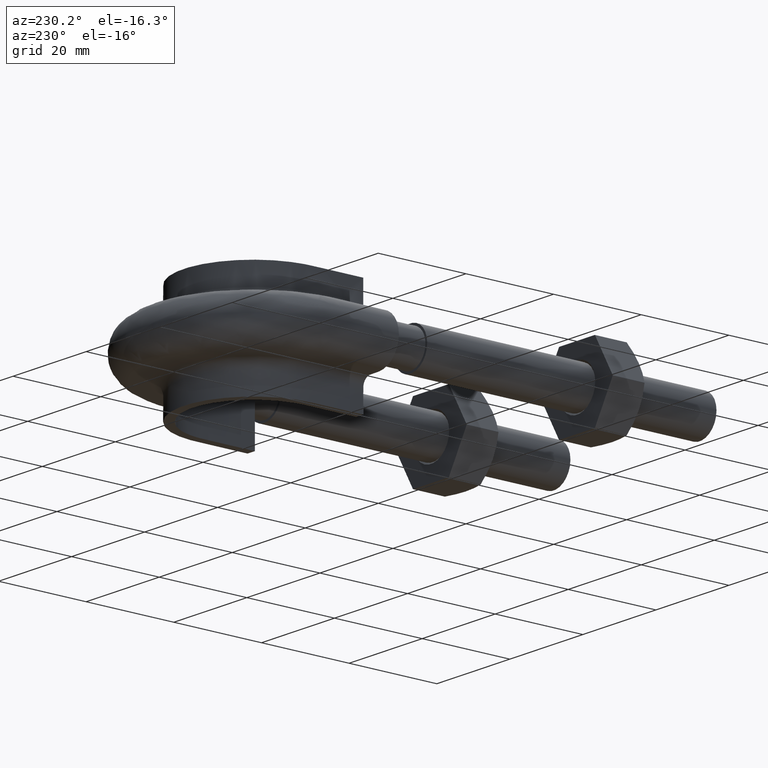
[diagram: clean part render]
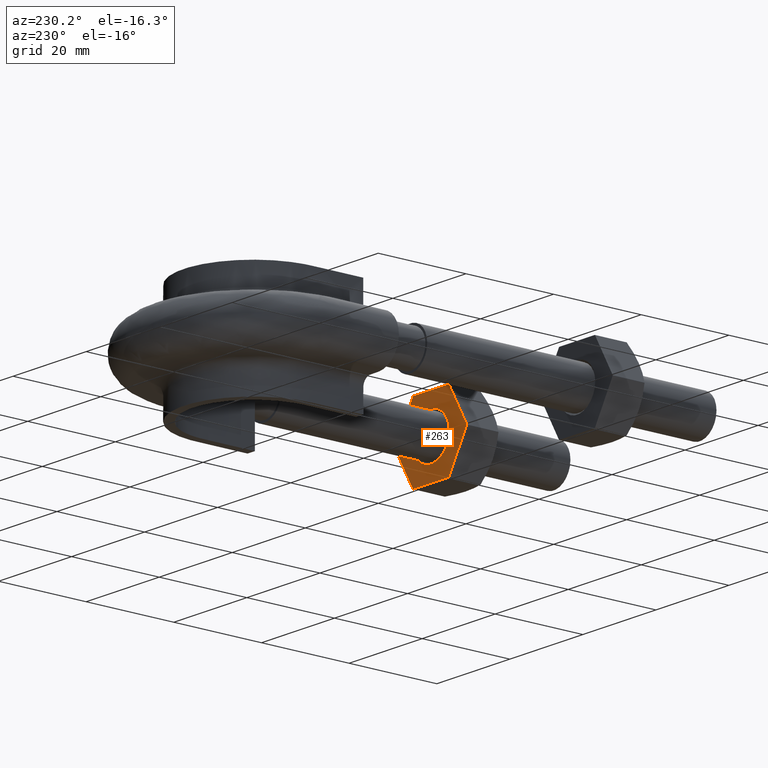
[diagram: same view with one face highlighted and labeled with its STEP entity id]
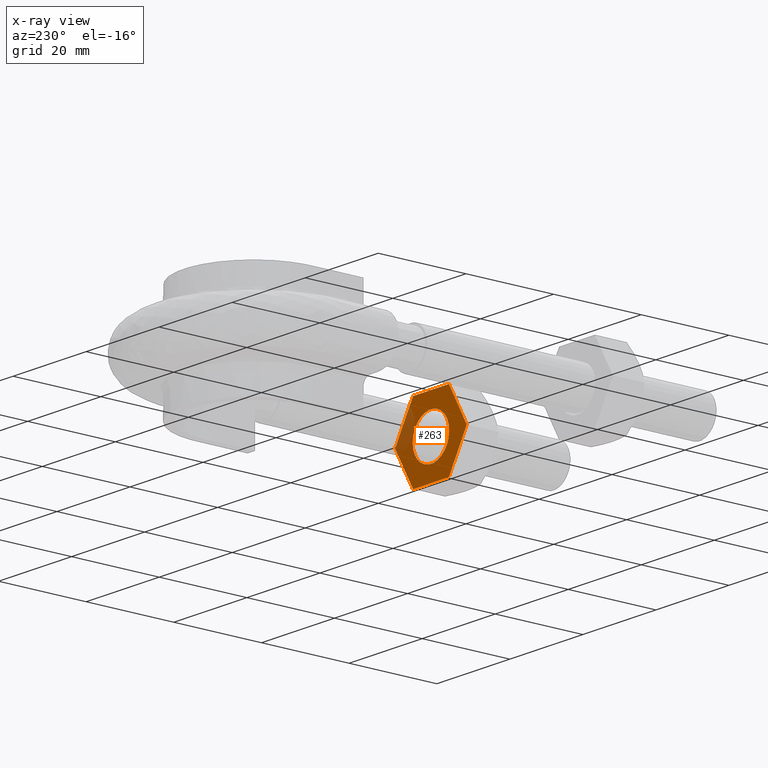
[diagram: x-ray of the same camera — body ghosted, the highlighted face saturated]
A machine part, auxiliary view. The second image highlights one B-rep face of the part: STEP entity #263.
The next image is the same camera in x-ray: the body ghosted, the highlighted face saturated — about 13% of this face is hidden behind the body in this view.
In plain terms, the highlighted planar face has unit normal (-0, -1, -0).
Its self-contained STEP definition (entity closure, byte-faithful):
#263 = ADVANCED_FACE( '', ( #382, #383 ), #384, .F. );
#382 = FACE_OUTER_BOUND( '', #1240, .T. );
#383 = FACE_BOUND( '', #1241, .T. );
#384 = PLANE( '', #1242 );
#1240 = EDGE_LOOP( '', ( #1604, #1605, #1606, #1607, #1608, #1609, #1610, #1611, #1612, #1613, #1614, #1615 ) );
#1241 = EDGE_LOOP( '', ( #1616 ) );
#1242 = AXIS2_PLACEMENT_3D( '', #1617, #1618, #1619 );
#1604 = ORIENTED_EDGE( '', *, *, #1828, .T. );
#1605 = ORIENTED_EDGE( '', *, *, #1829, .T. );
#1606 = ORIENTED_EDGE( '', *, *, #1830, .T. );
#1607 = ORIENTED_EDGE( '', *, *, #1831, .T. );
#1608 = ORIENTED_EDGE( '', *, *, #1832, .T. );
#1609 = ORIENTED_EDGE( '', *, *, #1822, .T. );
#1610 = ORIENTED_EDGE( '', *, *, #1818, .T. );
#1611 = ORIENTED_EDGE( '', *, *, #1833, .T. );
#1612 = ORIENTED_EDGE( '', *, *, #1834, .T. );
#1613 = ORIENTED_EDGE( '', *, *, #1814, .T. );
#1614 = ORIENTED_EDGE( '', *, *, #1835, .T. );
#1615 = ORIENTED_EDGE( '', *, *, #1836, .T. );
#1616 = ORIENTED_EDGE( '', *, *, #1826, .F. );
#1617 = CARTESIAN_POINT( '', ( 24.8999999999996, 27.9999999999975, 8.48704895708419 ) );
#1618 = DIRECTION( '', ( -4.89842541528951E-016, -1.00000000000000, -6.12303176911189E-017 ) );
#1619 = DIRECTION( '', ( -1.00000000000000, 4.89842541528951E-016, 6.03777548009827E-048 ) );
#1814 = EDGE_CURVE( '', #1996, #1994, #1997, .T. );
#1818 = EDGE_CURVE( '', #2004, #2002, #2005, .F. );
#1822 = EDGE_CURVE( '', #2011, #2004, #2012, .T. );
#1826 = EDGE_CURVE( '', #2017, #2017, #2018, .F. );
#1828 = EDGE_CURVE( '', #2021, #2022, #2023, .F. );
#1829 = EDGE_CURVE( '', #2022, #2024, #2025, .T. );
#1830 = EDGE_CURVE( '', #2024, #2026, #2027, .F. );
#1831 = EDGE_CURVE( '', #2026, #2028, #2029, .T. );
#1832 = EDGE_CURVE( '', #2028, #2011, #2030, .F. );
#1833 = EDGE_CURVE( '', #2002, #2031, #2032, .T. );
#1834 = EDGE_CURVE( '', #2031, #1996, #2033, .F. );
#1835 = EDGE_CURVE( '', #1994, #2034, #2035, .F. );
#1836 = EDGE_CURVE( '', #2034, #2021, #2036, .T. );
#1994 = VERTEX_POINT( '', #2470 );
#1996 = VERTEX_POINT( '', #2473 );
#1997 = LINE( '', #2474, #2475 );
#2002 = VERTEX_POINT( '', #2481 );
#2004 = VERTEX_POINT( '', #2484 );
#2005 = CIRCLE( '', #2485, 9.80000000000000 );
#2011 = VERTEX_POINT( '', #2502 );
#2012 = LINE( '', #2503, #2504 );
#2017 = VERTEX_POINT( '', #2515 );
#2018 = CIRCLE( '', #2516, 4.99999999999970 );
#2021 = VERTEX_POINT( '', #2519 );
#2022 = VERTEX_POINT( '', #2520 );
#2023 = CIRCLE( '', #2521, 9.80000000000000 );
#2024 = VERTEX_POINT( '', #2522 );
#2025 = LINE( '', #2523, #2524 );
#2026 = VERTEX_POINT( '', #2525 );
#2027 = CIRCLE( '', #2526, 9.80000000000000 );
#2028 = VERTEX_POINT( '', #2527 );
#2029 = LINE( '', #2528, #2529 );
#2030 = CIRCLE( '', #2530, 9.80000000000000 );
#2031 = VERTEX_POINT( '', #2531 );
#2032 = LINE( '', #2532, #2533 );
#2033 = CIRCLE( '', #2534, 9.80000000000000 );
#2034 = VERTEX_POINT( '', #2535 );
#2035 = CIRCLE( '', #2536, 9.80000000000000 );
#2036 = LINE( '', #2537, #2538 );
#2470 = CARTESIAN_POINT( '', ( 24.8774993593040, 27.9999999999975, 8.49999999999934 ) );
#2473 = CARTESIAN_POINT( '', ( 15.1225006406960, 27.9999999999975, 8.49999999999934 ) );
#2474 = CARTESIAN_POINT( '', ( 24.8999999999996, 27.9999999999975, 8.49999999999934 ) );
#2475 = VECTOR( '', #2710, 1000.00000000000 );
#2481 = CARTESIAN_POINT( '', ( 10.2000343881808, 27.9999999999975, 0.0259616479027578 ) );
#2484 = CARTESIAN_POINT( '', ( 10.2000343881808, 27.9999999999975, -0.0259616478920127 ) );
#2485 = AXIS2_PLACEMENT_3D( '', #2716, #2717, #2718 );
#2502 = CARTESIAN_POINT( '', ( 15.0775337474872, 27.9999999999975, -8.47403835210066 ) );
#2503 = CARTESIAN_POINT( '', ( 10.1887840678354, 27.9999999999975, -0.00647552145224828 ) );
#2504 = VECTOR( '', #2720, 1000.00000000000 );
#2515 = CARTESIAN_POINT( '', ( 24.9999999999997, 27.9999999999975, 2.44921270764396E-016 ) );
#2516 = AXIS2_PLACEMENT_3D( '', #2725, #2726, #2727 );
#2519 = CARTESIAN_POINT( '', ( 29.7999656118192, 27.9999999999975, 0.0259616478920203 ) );
#2520 = CARTESIAN_POINT( '', ( 29.7999656118192, 27.9999999999975, -0.0259616479027563 ) );
#2521 = AXIS2_PLACEMENT_3D( '', #2731, #2732, #2733 );
#2522 = CARTESIAN_POINT( '', ( 24.9224662525152, 27.9999999999975, -8.47403835209926 ) );
#2523 = CARTESIAN_POINT( '', ( 32.2612159321668, 27.9999999999975, 4.23704895708317 ) );
#2524 = VECTOR( '', #2734, 1000.00000000000 );
#2525 = CARTESIAN_POINT( '', ( 24.8774993593040, 27.9999999999975, -8.49999999999934 ) );
#2526 = AXIS2_PLACEMENT_3D( '', #2735, #2736, #2737 );
#2527 = CARTESIAN_POINT( '', ( 15.1225006406960, 27.9999999999975, -8.49999999999934 ) );
#2528 = CARTESIAN_POINT( '', ( 24.8999999999996, 27.9999999999975, -8.49999999999934 ) );
#2529 = VECTOR( '', #2738, 1000.00000000000 );
#2530 = AXIS2_PLACEMENT_3D( '', #2739, #2740, #2741 );
#2531 = CARTESIAN_POINT( '', ( 15.0775337474848, 27.9999999999975, 8.47403835209926 ) );
#2532 = CARTESIAN_POINT( '', ( 17.5387840678324, 27.9999999999975, 12.7370489570852 ) );
#2533 = VECTOR( '', #2742, 1000.00000000000 );
#2534 = AXIS2_PLACEMENT_3D( '', #2743, #2744, #2745 );
#2535 = CARTESIAN_POINT( '', ( 24.9224662525128, 27.9999999999975, 8.47403835210066 ) );
#2536 = AXIS2_PLACEMENT_3D( '', #2746, #2747, #2748 );
#2537 = CARTESIAN_POINT( '', ( 24.9112159321673, 27.9999999999975, 8.49352447854043 ) );
#2538 = VECTOR( '', #2749, 1000.00000000000 );
#2710 = DIRECTION( '', ( 1.00000000000000, -4.89842541528951E-016, -1.39344390298221E-026 ) );
#2716 = CARTESIAN_POINT( '', ( 20.0000000000000, 27.9999999999975, 2.44921270764399E-016 ) );
#2717 = DIRECTION( '', ( -4.89842541528951E-016, -1.00000000000000, -6.12303176911189E-017 ) );
#2718 = DIRECTION( '', ( 1.00000000000000, -4.89842541528951E-016, 0.000000000000000 ) );
#2720 = DIRECTION( '', ( -0.499999999999766, 1.91894260162052E-016, 0.866025403784574 ) );
#2725 = CARTESIAN_POINT( '', ( 20.0000000000000, 27.9999999999975, 2.44921270764396E-016 ) );
#2726 = DIRECTION( '', ( -4.89842541528951E-016, -1.00000000000000, -6.12303176911189E-017 ) );
#2727 = DIRECTION( '', ( 1.00000000000000, -4.89842541528951E-016, 0.000000000000000 ) );
#2731 = CARTESIAN_POINT( '', ( 20.0000000000000, 27.9999999999975, 2.44921270764399E-016 ) );
#2732 = DIRECTION( '', ( -4.89842541528951E-016, -1.00000000000000, -6.12303176911189E-017 ) );
#2733 = DIRECTION( '', ( 1.00000000000000, -4.89842541528951E-016, 0.000000000000000 ) );
#2734 = DIRECTION( '', ( -0.500000000000117, 2.97948281366829E-016, -0.866025403784371 ) );
#2735 = CARTESIAN_POINT( '', ( 20.0000000000000, 27.9999999999975, 2.44921270764399E-016 ) );
#2736 = DIRECTION( '', ( -4.89842541528951E-016, -1.00000000000000, -6.12303176911189E-017 ) );
#2737 = DIRECTION( '', ( 1.00000000000000, -4.89842541528951E-016, 0.000000000000000 ) );
#2738 = DIRECTION( '', ( -1.00000000000000, 4.89842541528951E-016, 2.99932144355895E-032 ) );
#2739 = CARTESIAN_POINT( '', ( 20.0000000000000, 27.9999999999975, 2.44921270764399E-016 ) );
#2740 = DIRECTION( '', ( -4.89842541528951E-016, -1.00000000000000, -6.12303176911189E-017 ) );
#2741 = DIRECTION( '', ( 1.00000000000000, -4.89842541528951E-016, 0.000000000000000 ) );
#2742 = DIRECTION( '', ( 0.500000000000117, -2.97948281366829E-016, 0.866025403784371 ) );
#2743 = CARTESIAN_POINT( '', ( 20.0000000000000, 27.9999999999975, 2.44921270764399E-016 ) );
#2744 = DIRECTION( '', ( -4.89842541528951E-016, -1.00000000000000, -6.12303176911189E-017 ) );
#2745 = DIRECTION( '', ( 1.00000000000000, -4.89842541528951E-016, 0.000000000000000 ) );
#2746 = CARTESIAN_POINT( '', ( 20.0000000000000, 27.9999999999975, 2.44921270764399E-016 ) );
#2747 = DIRECTION( '', ( -4.89842541528951E-016, -1.00000000000000, -6.12303176911189E-017 ) );
#2748 = DIRECTION( '', ( 1.00000000000000, -4.89842541528951E-016, 0.000000000000000 ) );
#2749 = DIRECTION( '', ( 0.499999999999766, -1.91894260162052E-016, -0.866025403784574 ) );